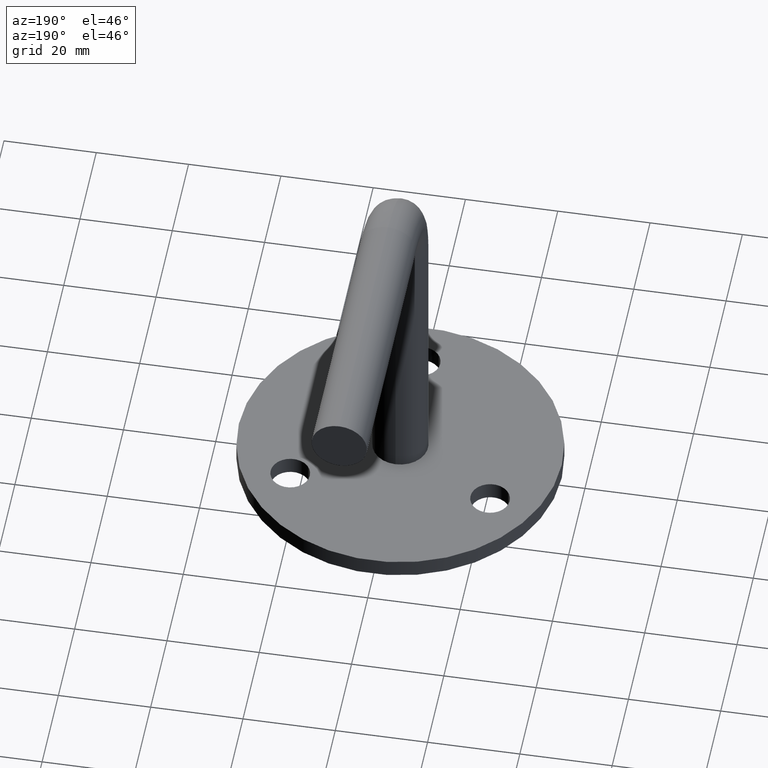
[diagram: clean part render]
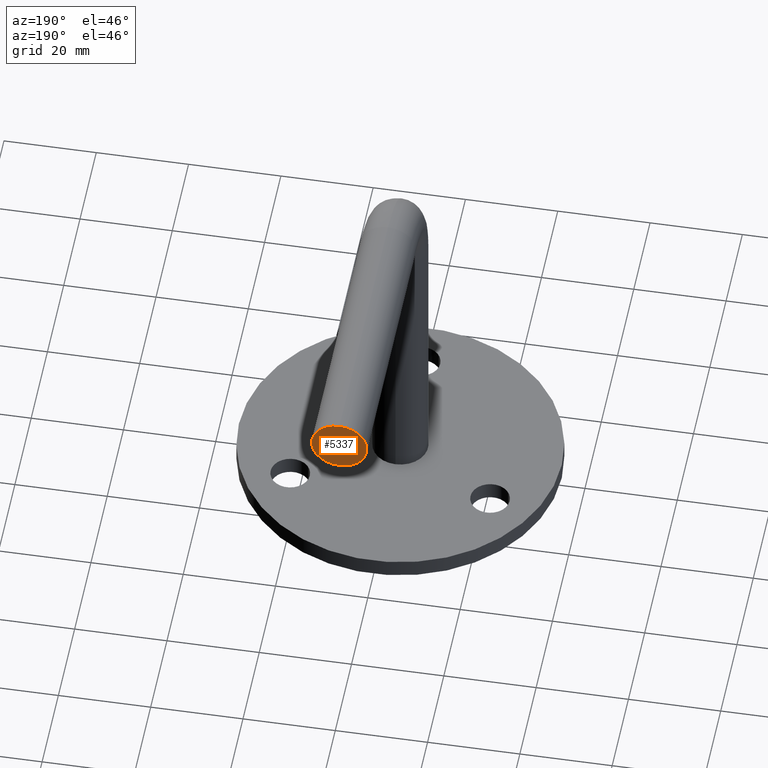
[diagram: same view with one face highlighted and labeled with its STEP entity id]
A machine part, auxiliary view. The second image highlights one B-rep face of the part: STEP entity #5337.
In plain terms, the highlighted planar face has unit normal (0, -1, 0).
Its self-contained STEP definition (entity closure, byte-faithful):
#566 = PLANE ( 'NONE',  #5329 ) ;
#1131 = EDGE_CURVE ( 'NONE', #9899, #1831, #16625, .T. ) ;
#1711 = AXIS2_PLACEMENT_3D ( 'NONE', #8988, #14211, #3684 ) ;
#1831 = VERTEX_POINT ( 'NONE', #5003 ) ;
#2089 = ORIENTED_EDGE ( 'NONE', *, *, #9025, .F. ) ;
#2273 = DIRECTION ( 'NONE',  ( 0.000000000000000000, -1.000000000000000000, 1.437166698016966745E-14 ) ) ;
#2372 = FACE_OUTER_BOUND ( 'NONE', #16599, .T. ) ;
#3483 = DIRECTION ( 'NONE',  ( -1.000000000000000000, 0.000000000000000000, 0.000000000000000000 ) ) ;
#3575 = AXIS2_PLACEMENT_3D ( 'NONE', #16794, #2273, #3483 ) ;
#3684 = DIRECTION ( 'NONE',  ( -1.000000000000000000, 0.000000000000000000, 0.000000000000000000 ) ) ;
#5003 = CARTESIAN_POINT ( 'NONE',  ( 7.347880794884114806E-16, 74.99999999999990052, 74.00000000000000000 ) ) ;
#5329 = AXIS2_PLACEMENT_3D ( 'NONE', #15314, #15143, #7171 ) ;
#5337 = ADVANCED_FACE ( 'NONE', ( #2372 ), #566, .F. ) ;
#7171 = DIRECTION ( 'NONE',  ( -1.000000000000000000, -0.000000000000000000, 0.000000000000000000 ) ) ;
#8988 = CARTESIAN_POINT ( 'NONE',  ( 0.000000000000000000, 74.99999999999998579, 80.00000000000000000 ) ) ;
#9025 = EDGE_CURVE ( 'NONE', #1831, #9899, #9122, .T. ) ;
#9122 = CIRCLE ( 'NONE', #3575, 6.000000000000000888 ) ;
#9899 = VERTEX_POINT ( 'NONE', #13513 ) ;
#12367 = ORIENTED_EDGE ( 'NONE', *, *, #1131, .F. ) ;
#13513 = CARTESIAN_POINT ( 'NONE',  ( 0.000000000000000000, 75.00000000000007105, 86.00000000000000000 ) ) ;
#14211 = DIRECTION ( 'NONE',  ( 0.000000000000000000, -1.000000000000000000, 1.437166698016966745E-14 ) ) ;
#15143 = DIRECTION ( 'NONE',  ( 0.000000000000000000, -1.000000000000000000, 1.437166698016966745E-14 ) ) ;
#15314 = CARTESIAN_POINT ( 'NONE',  ( 0.000000000000000000, 74.99999999999998579, 80.00000000000000000 ) ) ;
#16599 = EDGE_LOOP ( 'NONE', ( #12367, #2089 ) ) ;
#16625 = CIRCLE ( 'NONE', #1711, 6.000000000000000888 ) ;
#16794 = CARTESIAN_POINT ( 'NONE',  ( 0.000000000000000000, 74.99999999999998579, 80.00000000000000000 ) ) ;